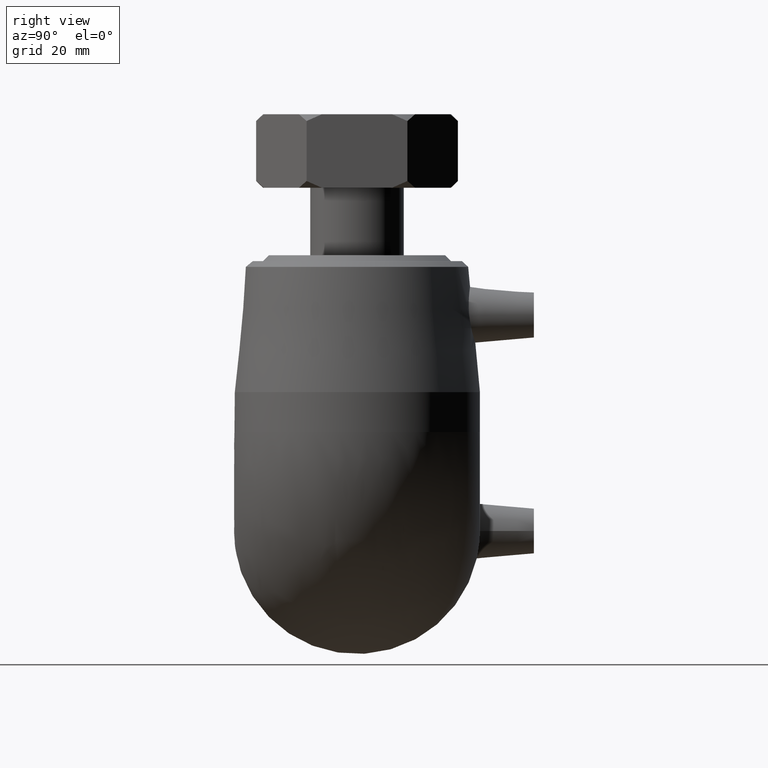
[diagram: clean part render]
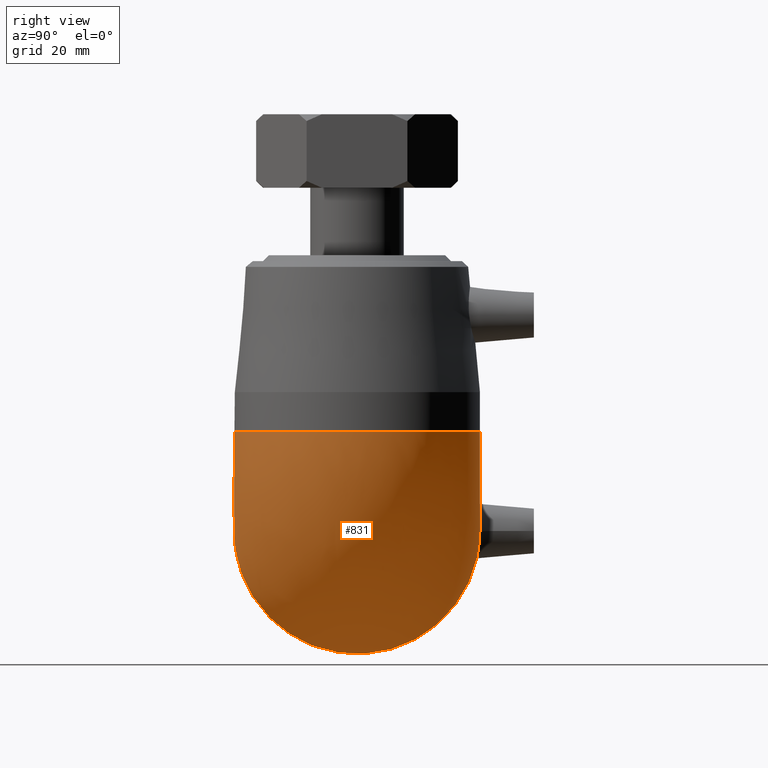
[diagram: same view with one face highlighted and labeled with its STEP entity id]
A machine part, right view. The second image highlights one B-rep face of the part: STEP entity #831.
In plain terms, the highlighted face is a freeform B-spline surface patch.
Its self-contained STEP definition (entity closure, byte-faithful):
#16=(
BOUNDED_SURFACE()
B_SPLINE_SURFACE(2,2,((#1536,#1537,#1538),(#1539,#1540,#1541),(#1542,#1543,
#1544),(#1545,#1546,#1547),(#1548,#1549,#1550),(#1551,#1552,#1553),(#1554,
#1555,#1556),(#1557,#1558,#1559),(#1560,#1561,#1562)),.UNSPECIFIED.,.F.,
 .F.,.F.)
B_SPLINE_SURFACE_WITH_KNOTS((3,2,2,2,3),(3,3),(-2.50626626762527,-1.25313313381264,
0.,1.25313313381264,2.50626626762527),(-2.04758954793629E-18,1.5707963267949),
 .UNSPECIFIED.)
GEOMETRIC_REPRESENTATION_ITEM()
RATIONAL_B_SPLINE_SURFACE(((1.,0.707106781186547,1.),(0.810045530750344,
0.572788687863424,0.810045530750344),(1.,0.707106781186547,1.),(0.810045530750344,
0.572788687863424,0.810045530750344),(1.,0.707106781186547,1.),(0.810045530750344,
0.572788687863424,0.810045530750344),(1.,0.707106781186547,1.),(0.810045530750344,
0.572788687863424,0.810045530750344),(1.,0.707106781186547,1.)))
REPRESENTATION_ITEM('')
SURFACE()
);
#208=FACE_OUTER_BOUND('',#300,.T.);
#300=EDGE_LOOP('',(#728,#729));
#374=CIRCLE('',#939,41.);
#375=CIRCLE('',#940,41.);
#454=VERTEX_POINT('',#1563);
#455=VERTEX_POINT('',#1564);
#552=EDGE_CURVE('',#454,#455,#374,.T.);
#553=EDGE_CURVE('',#455,#454,#375,.T.);
#728=ORIENTED_EDGE('',*,*,#552,.T.);
#729=ORIENTED_EDGE('',*,*,#553,.T.);
#831=ADVANCED_FACE('',(#208),#16,.F.);
#939=AXIS2_PLACEMENT_3D('',#1565,#1162,#1163);
#940=AXIS2_PLACEMENT_3D('',#1566,#1164,#1165);
#1162=DIRECTION('center_axis',(6.12323399573677E-17,-1.5419764230905E-18,
-1.));
#1163=DIRECTION('ref_axis',(-1.,0.,-6.12323399573676E-17));
#1164=DIRECTION('center_axis',(1.,-1.5419764230905E-18,0.));
#1165=DIRECTION('ref_axis',(0.,0.,-1.));
#1536=CARTESIAN_POINT('Ctrl Pts',(-33.,24.3310501211929,33.));
#1537=CARTESIAN_POINT('Ctrl Pts',(-33.,24.3310501211929,33.));
#1538=CARTESIAN_POINT('Ctrl Pts',(-33.,24.3310501211929,33.));
#1539=CARTESIAN_POINT('Ctrl Pts',(-33.,48.2187325864428,15.3875030502686));
#1540=CARTESIAN_POINT('Ctrl Pts',(-15.3875030502686,48.2187325864428,15.3875030502686));
#1541=CARTESIAN_POINT('Ctrl Pts',(-15.3875030502686,48.2187325864428,33.));
#1542=CARTESIAN_POINT('Ctrl Pts',(-33.,38.9486841883009,-12.8062484748657));
#1543=CARTESIAN_POINT('Ctrl Pts',(12.8062484748657,38.9486841883009,-12.8062484748657));
#1544=CARTESIAN_POINT('Ctrl Pts',(12.8062484748657,38.9486841883009,33.));
#1545=CARTESIAN_POINT('Ctrl Pts',(-33.,29.678635790159,-41.));
#1546=CARTESIAN_POINT('Ctrl Pts',(41.,29.678635790159,-41.));
#1547=CARTESIAN_POINT('Ctrl Pts',(41.,29.678635790159,33.));
#1548=CARTESIAN_POINT('Ctrl Pts',(-33.,0.,-41.));
#1549=CARTESIAN_POINT('Ctrl Pts',(41.,-1.14106255308697E-16,-41.));
#1550=CARTESIAN_POINT('Ctrl Pts',(41.,-1.14106255308697E-16,33.));
#1551=CARTESIAN_POINT('Ctrl Pts',(-33.,-29.678635790159,-41.));
#1552=CARTESIAN_POINT('Ctrl Pts',(41.,-29.678635790159,-41.));
#1553=CARTESIAN_POINT('Ctrl Pts',(41.,-29.678635790159,33.));
#1554=CARTESIAN_POINT('Ctrl Pts',(-33.,-38.9486841883009,-12.8062484748657));
#1555=CARTESIAN_POINT('Ctrl Pts',(12.8062484748657,-38.9486841883009,-12.8062484748657));
#1556=CARTESIAN_POINT('Ctrl Pts',(12.8062484748657,-38.9486841883009,33.));
#1557=CARTESIAN_POINT('Ctrl Pts',(-33.,-48.2187325864428,15.3875030502686));
#1558=CARTESIAN_POINT('Ctrl Pts',(-15.3875030502686,-48.2187325864428,15.3875030502686));
#1559=CARTESIAN_POINT('Ctrl Pts',(-15.3875030502686,-48.2187325864428,33.));
#1560=CARTESIAN_POINT('Ctrl Pts',(-33.,-24.3310501211929,33.));
#1561=CARTESIAN_POINT('Ctrl Pts',(-33.,-24.3310501211929,33.));
#1562=CARTESIAN_POINT('Ctrl Pts',(-33.,-24.3310501211929,33.));
#1563=CARTESIAN_POINT('',(-33.,24.3310501211929,33.));
#1564=CARTESIAN_POINT('',(-33.,-24.3310501211929,33.));
#1565=CARTESIAN_POINT('Origin',(-2.02066721859313E-15,-8.78926561161582E-17,
33.));
#1566=CARTESIAN_POINT('Origin',(-33.,-8.78926561161582E-17,0.));